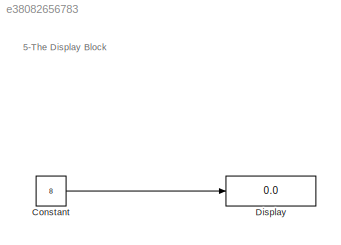
MODEL slx_e38082656783
KIND model
CONFIG AbsTol = auto
CONFIG EnableMultiTasking = off
CONFIG FixedStep = auto
CONFIG MaxStep = auto
CONFIG MinStep = auto
CONFIG RelTol = 1e-3
CONFIG SampleTimeConstraint = Unconstrained
CONFIG SolverName = VariableStepAuto
CONFIG StartTime = 0.0
CONFIG StopTime = 10.0
BLOCK [Constant] Constant
  Value = 8
BLOCK [Display] Display
  Decimation = 1
  Ports = [1]
ANNOTATION (root): 5-The Display Block
LINE Constant:1 -> Display:1
